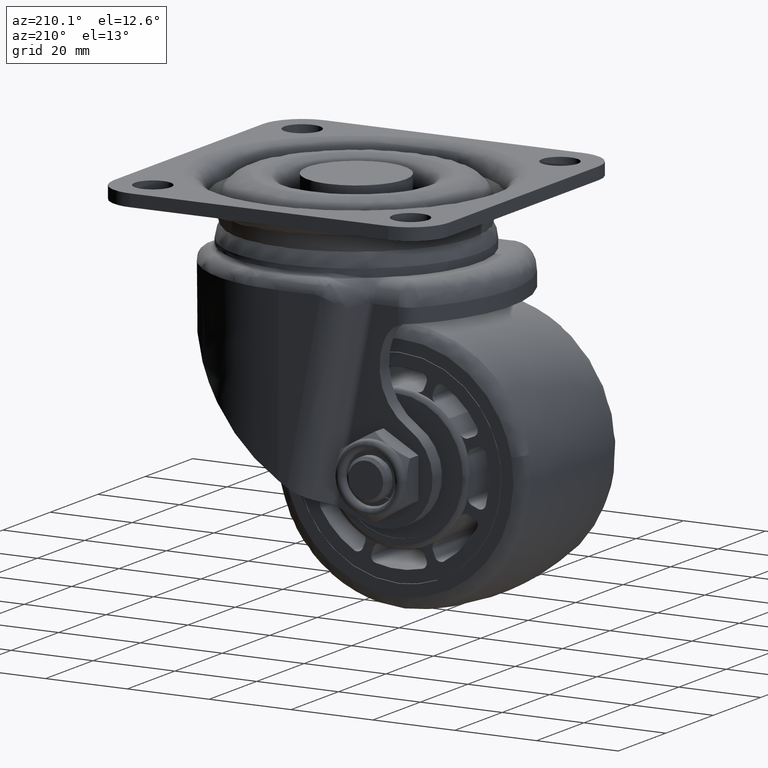
[diagram: clean part render]
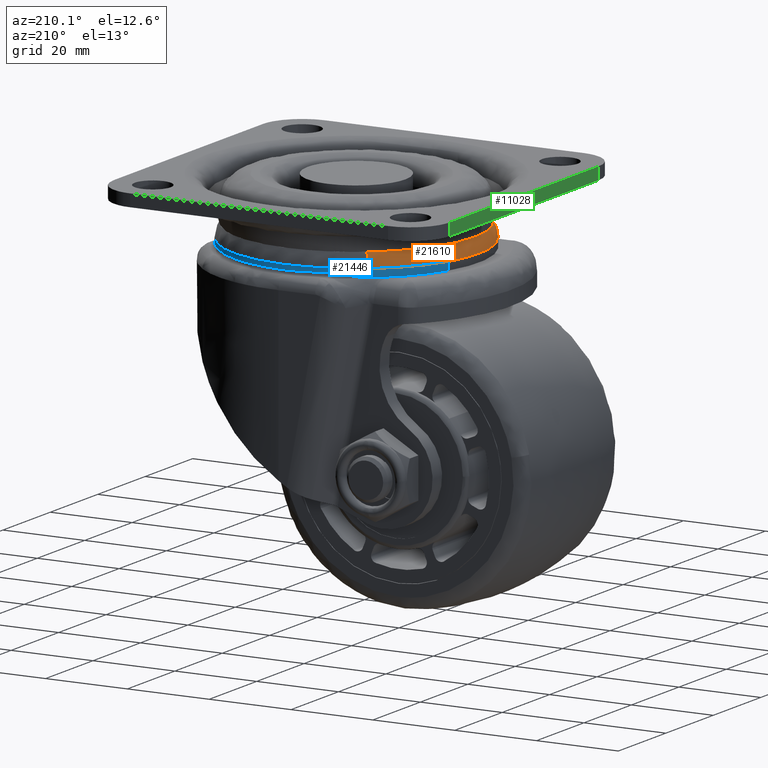
[diagram: same view with three faces highlighted in distinct colors, each labeled with its STEP entity id]
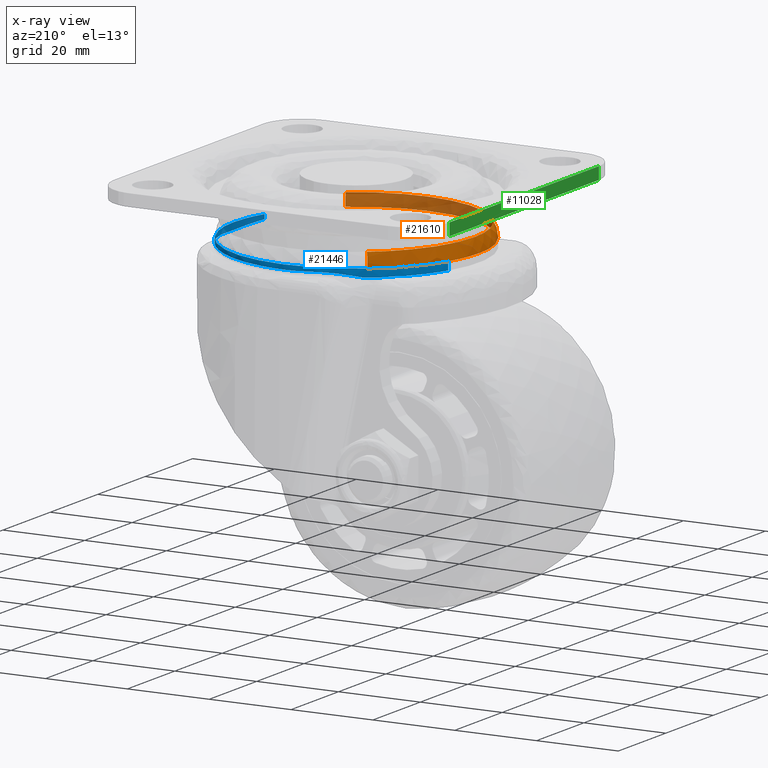
[diagram: x-ray of the same camera — body ghosted, the three highlighted faces saturated]
A machine part, auxiliary view with three faces highlighted in distinct colors.
The next image is the same camera in x-ray (body ghosted, the three faces saturated) — at least one of them is partly hidden behind the body in this view.
Their STEP definitions:

[orange] entity #21610 — the highlighted face is a freeform B-spline surface patch.
#21296=CARTESIAN_POINT('',(39.018068473802749,-24.705977928852629,43.500000000005940));
#21297=VERTEX_POINT('',#21296);
#21308=CARTESIAN_POINT('',(-7.999999999999752,0.0,43.500000000000000));
#21309=VERTEX_POINT('',#21308);
#21310=CARTESIAN_POINT('',(39.018068473802749,-24.705977928852629,43.500000000005940));
#21311=CARTESIAN_POINT('',(37.060166007435662,-26.055349949037751,43.500000000005883));
#21312=CARTESIAN_POINT('',(34.183717651239988,-27.567617846686389,43.500000000005542));
#21313=CARTESIAN_POINT('',(29.669842948243058,-29.078150485066072,43.500000000005294));
#21314=CARTESIAN_POINT('',(26.083544859609649,-29.820328641135440,43.500000000005073));
#21315=CARTESIAN_POINT('',(22.177213982068299,-30.070346438050208,43.500000000004178));
#21316=CARTESIAN_POINT('',(18.440616992526120,-29.864832717171801,43.500000000004398));
#21317=CARTESIAN_POINT('',(15.006008731457410,-29.246598889282701,43.500000000003823));
#21318=CARTESIAN_POINT('',(11.591021093142750,-28.201499999169322,43.500000000003780));
#21319=CARTESIAN_POINT('',(8.622880351521314,-26.920689776703679,43.500000000000341));
#21320=CARTESIAN_POINT('',(5.667458884587478,-25.237263445763951,43.500000000005663));
#21321=CARTESIAN_POINT('',(3.051873225011089,-23.337512109037000,43.500000000000767));
#21322=CARTESIAN_POINT('',(0.348208756585983,-20.875969616943241,43.500000000002487));
#21323=CARTESIAN_POINT('',(-1.813948202860139,-18.355809662302871,43.500000000001428));
#21324=CARTESIAN_POINT('',(-3.908510445784699,-15.257445650482611,43.500000000001201));
#21325=CARTESIAN_POINT('',(-5.519921565744447,-12.160766933460490,43.500000000000902));
#21326=CARTESIAN_POINT('',(-6.709870530980135,-8.882101288324712,43.500000000000583));
#21327=CARTESIAN_POINT('',(-7.704615016800920,-4.925318520627249,43.500000000000327));
#21328=CARTESIAN_POINT('',(-8.000293390587004,-2.038136299376756,43.500000000000057));
#21329=CARTESIAN_POINT('',(-7.999999999999752,0.0,43.500000000000000));
#21330=B_SPLINE_CURVE_WITH_KNOTS('',3,(#21310,#21311,#21312,#21313,#21314,#21315,#21316,#21317,#21318,#21319,#21320,#21321,#21322,#21323,#21324,#21325,#21326,#21327,#21328,#21329),.UNSPECIFIED.,.F.,.U.,(4,1,1,1,1,1,1,1,1,1,1,1,1,1,1,1,1,4),(0.000000026945798,7.133361773843390,9.681024836465248,14.266795696799520,18.088275537715781,21.400219444680399,25.476458205239339,28.533617282744530,32.100312584604239,35.157469662344212,38.724127281017630,41.781327952109358,46.112329696185299,48.659980075669168,52.990984626771372,56.557705841077457,59.105320342017471,65.219659457132323),.UNSPECIFIED.);
#21331=EDGE_CURVE('',#21297,#21309,#21330,.T.);
#21333=CARTESIAN_POINT('',(-6.272606114244018,10.032932946492050,43.500000000002061));
#21334=VERTEX_POINT('',#21333);
#21335=CARTESIAN_POINT('',(-7.999999999999752,0.0,43.500000000000000));
#21336=CARTESIAN_POINT('',(-8.000198034597256,1.811581360808495,43.500000000000263));
#21337=CARTESIAN_POINT('',(-7.690098812899021,5.221519424117773,43.500000000001009));
#21338=CARTESIAN_POINT('',(-6.807276962479744,8.526553397810085,43.500000000001862));
#21339=CARTESIAN_POINT('',(-6.272606114244018,10.032932946492050,43.500000000002061));
#21340=B_SPLINE_CURVE_WITH_KNOTS('',3,(#21335,#21336,#21337,#21338,#21339),.UNSPECIFIED.,.F.,.U.,(4,1,4),(3.710610E-009,5.434711196533819,10.230057249784940),.UNSPECIFIED.);
#21341=EDGE_CURVE('',#21309,#21334,#21340,.T.);
#21411=CARTESIAN_POINT('',(4.981931526197247,24.705977928852612,43.500000000005940));
#21412=VERTEX_POINT('',#21411);
#21413=CARTESIAN_POINT('',(-6.272606114244018,10.032932946492050,43.500000000002061));
#21414=CARTESIAN_POINT('',(-5.912437670974369,11.047906145484530,43.500000000002252));
#21415=CARTESIAN_POINT('',(-4.950668900627891,13.355793971494830,43.500000000002892));
#21416=CARTESIAN_POINT('',(-2.757354070784402,17.189731412612399,43.500000000003674));
#21417=CARTESIAN_POINT('',(0.545200406907393,21.222858280632309,43.500000000004981));
#21418=CARTESIAN_POINT('',(3.449850202155548,23.650861305721541,43.500000000005642));
#21419=CARTESIAN_POINT('',(4.981931526197247,24.705977928852612,43.500000000005940));
#21420=B_SPLINE_CURVE_WITH_KNOTS('',3,(#21413,#21414,#21415,#21416,#21417,#21418,#21419),.UNSPECIFIED.,.F.,.U.,(4,1,1,1,4),(0.000000011730855,3.230954936508104,7.489949493410524,13.217544546917180,18.798289740704710),.UNSPECIFIED.);
#21421=EDGE_CURVE('',#21334,#21412,#21420,.T.);
#21477=CARTESIAN_POINT('',(5.581147861975414,23.836065718212410,46.900001048870202));
#21478=VERTEX_POINT('',#21477);
#21479=CARTESIAN_POINT('',(5.581147861975414,23.836065718212410,46.900001048870202));
#21480=CARTESIAN_POINT('',(5.399481258656456,24.099800177795561,46.434743072087002));
#21481=CARTESIAN_POINT('',(5.092437561215981,24.545550811835810,45.344785638760463));
#21482=CARTESIAN_POINT('',(4.981730513359277,24.706269749199610,44.140151421463898));
#21483=CARTESIAN_POINT('',(4.981931526197247,24.705977928852612,43.500000000005940));
#21484=B_SPLINE_CURVE_WITH_KNOTS('',3,(#21479,#21480,#21481,#21482,#21483),.UNSPECIFIED.,.F.,.U.,(4,1,4),(0.000000017677369,1.694433944489253,3.614782450137159),.UNSPECIFIED.);
#21485=EDGE_CURVE('',#21478,#21412,#21484,.T.);
#21510=CARTESIAN_POINT('',(38.418852138024583,-23.836065718212421,46.900001048870202));
#21511=VERTEX_POINT('',#21510);
#21524=CARTESIAN_POINT('',(38.418852138024583,-23.836065718212421,46.900001048870202));
#21525=CARTESIAN_POINT('',(38.600511112692622,-24.099789102902960,46.434733808563088));
#21526=CARTESIAN_POINT('',(38.907574841822559,-24.545568817944812,45.344799737064442));
#21527=CARTESIAN_POINT('',(39.018266049164893,-24.706264758844689,44.140147089910322));
#21528=CARTESIAN_POINT('',(39.018068473802749,-24.705977928852629,43.500000000005940));
#21529=B_SPLINE_CURVE_WITH_KNOTS('',3,(#21524,#21525,#21526,#21527,#21528),.UNSPECIFIED.,.F.,.U.,(4,1,4),(0.000000017677030,1.694433944489078,3.614782450137176),.UNSPECIFIED.);
#21530=EDGE_CURVE('',#21511,#21297,#21529,.T.);
#21537=CARTESIAN_POINT('',(39.024673103487665,-23.294189499718659,47.044547984539449));
#21538=CARTESIAN_POINT('',(38.694598289948303,-23.521552925463915,47.044547984539449));
#21539=CARTESIAN_POINT('',(14.609076329991852,-40.112236488858883,47.044547984539449));
#21540=CARTESIAN_POINT('',(-1.751580079433515,-16.360656409425371,47.044547984539449));
#21541=CARTESIAN_POINT('',(-18.112236488858876,7.390923670008149,47.044547984539449));
#21542=CARTESIAN_POINT('',(5.973285471090280,23.981607233398087,47.044547984539449));
#21543=CARTESIAN_POINT('',(6.303360284622538,24.208970659138451,47.044547984539456));
#21544=CARTESIAN_POINT('',(39.743211357788567,-24.277337085386748,45.382033745714558));
#21545=CARTESIAN_POINT('',(39.399205505522772,-24.514296543786124,45.382033745714544));
#21546=CARTESIAN_POINT('',(14.297137219076944,-41.805201528927995,45.382033745714551));
#21547=CARTESIAN_POINT('',(-2.754032154925528,-17.051169374002466,45.382033745714544));
#21548=CARTESIAN_POINT('',(-19.805201528927995,7.702862780923055,45.382033745714551));
#21549=CARTESIAN_POINT('',(5.296866757510247,24.993767766059690,45.382033745714544));
#21550=CARTESIAN_POINT('',(5.640872609768620,25.230727224453965,45.382033745714558));
#21551=CARTESIAN_POINT('',(39.707215691321657,-24.228085633053308,43.322433438632196));
#21552=CARTESIAN_POINT('',(39.363907723991751,-24.464564371618000,43.322433438632196));
#21553=CARTESIAN_POINT('',(14.312764022698417,-41.720391284577452,43.322433438632196));
#21554=CARTESIAN_POINT('',(-2.703813630939526,-17.016577653637938,43.322433438632196));
#21555=CARTESIAN_POINT('',(-19.720391284577467,7.687235977301580,43.322433438632196));
#21556=CARTESIAN_POINT('',(5.330752416708297,24.943062890255828,43.322433438632203));
#21557=CARTESIAN_POINT('',(5.674060384030800,25.179541628815429,43.322433438632196));
#21565=(BOUNDED_SURFACE()B_SPLINE_SURFACE(2,2,((#21537,#21544,#21551),(#21538,#21545,#21552),(#21539,#21546,#21553),(#21540,#21547,#21554),(#21541,#21548,#21555),(#21542,#21549,#21556),(#21543,#21550,#21557)),.UNSPECIFIED.,.F.,.F.,.U.)B_SPLINE_SURFACE_WITH_KNOTS((3,1,2,1,3),(3,3),(0.0,0.994025463275139,50.695298625940588,100.396571788606000,101.390597251859400),(0.0,4.006316261530238),.UNSPECIFIED.)GEOMETRIC_REPRESENTATION_ITEM()RATIONAL_B_SPLINE_SURFACE(((0.950938823215274,0.898498284589376,0.949070791744421),(0.945432858942569,0.893295952606222,0.943575643429891),(0.664628681040675,0.627977021471084,0.663323079394906),(0.939926894669864,0.888093620623068,0.938080495115361),(0.664628681040675,0.627977021471084,0.663323079394906),(0.945432858942448,0.893295952606108,0.943575643429770),(0.950938823215032,0.898498284589147,0.949070791744180)))REPRESENTATION_ITEM('')SURFACE());
#21566=ORIENTED_EDGE('',*,*,#21421,.F.);
#21567=ORIENTED_EDGE('',*,*,#21341,.F.);
#21568=ORIENTED_EDGE('',*,*,#21331,.F.);
#21569=ORIENTED_EDGE('',*,*,#21530,.F.);
#21570=CARTESIAN_POINT('',(-6.943682116196939,0.0,46.900001049116320));
#21571=VERTEX_POINT('',#21570);
#21572=CARTESIAN_POINT('',(38.418852138024583,-23.836065718212421,46.900001048870202));
#21573=CARTESIAN_POINT('',(36.597344891711963,-25.091390954273820,46.900001048875062));
#21574=CARTESIAN_POINT('',(33.538436771211330,-26.716275400369700,46.900001048884732));
#21575=CARTESIAN_POINT('',(28.925846865128101,-28.194808021680451,46.900001048900378));
#21576=CARTESIAN_POINT('',(25.123559563012140,-28.864509262878322,46.900001048916309));
#21577=CARTESIAN_POINT('',(21.760035423207128,-28.993863686619310,46.900001048929127));
#21578=CARTESIAN_POINT('',(18.568809669171898,-28.791124609911900,46.900001048943743));
#21579=CARTESIAN_POINT('',(15.491655613955750,-28.277633108680568,46.900001048957563));
#21580=CARTESIAN_POINT('',(11.636094415773931,-27.133536767749369,46.900001048976847));
#21581=CARTESIAN_POINT('',(8.202553327172204,-25.546961216061451,46.900001048994817));
#21582=CARTESIAN_POINT('',(5.092048308134404,-23.558666199493821,46.900001049012531));
#21583=CARTESIAN_POINT('',(2.337056895303154,-21.354189730754602,46.900001049029171));
#21584=CARTESIAN_POINT('',(-0.164947904098922,-18.744228062024892,46.900001049045621));
#21585=CARTESIAN_POINT('',(-2.590944645668038,-15.435492681173850,46.900001049063320));
#21586=CARTESIAN_POINT('',(-4.393052580878234,-12.111464271570210,46.900001049078448));
#21587=CARTESIAN_POINT('',(-5.768541500573505,-8.419702965823454,46.900001049092502));
#21588=CARTESIAN_POINT('',(-6.699481119774948,-4.506136033818184,46.900001049105263));
#21589=CARTESIAN_POINT('',(-6.943824514546277,-1.638612417182394,46.900001049112660));
#21590=CARTESIAN_POINT('',(-6.943682116196939,0.0,46.900001049116320));
#21591=B_SPLINE_CURVE_WITH_KNOTS('',3,(#21572,#21573,#21574,#21575,#21576,#21577,#21578,#21579,#21580,#21581,#21582,#21583,#21584,#21585,#21586,#21587,#21588,#21589,#21590),.UNSPECIFIED.,.F.,.U.,(4,1,1,1,1,1,1,1,1,1,1,1,1,1,1,1,4),(0.000000013853352,6.636395325254810,10.323322395779330,14.501840512139150,18.188751502740530,20.400918543503160,24.087839317428219,27.528948763471430,32.444781524496300,35.394264768809492,38.589638793735482,43.013916221201399,46.209248180687609,50.879353985222743,54.320485629744780,58.007413113922397,62.923236368599781),.UNSPECIFIED.);
#21592=EDGE_CURVE('',#21511,#21571,#21591,.T.);
#21593=ORIENTED_EDGE('',*,*,#21592,.T.);
#21594=CARTESIAN_POINT('',(-6.943682116196939,0.0,46.900001049116320));
#21595=CARTESIAN_POINT('',(-6.943790563155172,1.604526461848555,46.900001049103430));
#21596=CARTESIAN_POINT('',(-6.724773193494706,4.230065090649798,46.900001049080977));
#21597=CARTESIAN_POINT('',(-5.787717952320712,8.436031798254584,46.900001049043240));
#21598=CARTESIAN_POINT('',(-4.295691926794570,12.411370284579711,46.900001049004743));
#21599=CARTESIAN_POINT('',(-2.130592956749504,16.145733980281982,46.900001048965308));
#21600=CARTESIAN_POINT('',(0.247646180200236,19.200859266593380,46.900001048930243));
#21601=CARTESIAN_POINT('',(2.720758977159412,21.688799594975901,46.900001048899810));
#21602=CARTESIAN_POINT('',(4.620134071930408,23.174131470001171,46.900001048879652));
#21603=CARTESIAN_POINT('',(5.581147861975414,23.836065718212410,46.900001048870202));
#21604=B_SPLINE_CURVE_WITH_KNOTS('',3,(#21594,#21595,#21596,#21597,#21598,#21599,#21600,#21601,#21602,#21603),.UNSPECIFIED.,.F.,.U.,(4,1,1,1,1,1,1,4),(0.000000025417549,4.813570512749610,7.876768675355486,12.909161302176059,17.503908800943499,20.785908662083621,24.505508942448088,28.006278487122518),.UNSPECIFIED.);
#21605=EDGE_CURVE('',#21571,#21478,#21604,.T.);
#21606=ORIENTED_EDGE('',*,*,#21605,.T.);
#21607=ORIENTED_EDGE('',*,*,#21485,.T.);
#21608=EDGE_LOOP('',(#21566,#21567,#21568,#21569,#21593,#21606,#21607));
#21609=FACE_OUTER_BOUND('',#21608,.T.);
#21610=ADVANCED_FACE('',(#21609),#21565,.T.);

[blue] entity #21446 — the highlighted face is a freeform B-spline surface patch.
#18246=CARTESIAN_POINT('',(-6.272606080730937,10.032933040931450,41.500000000000000));
#18247=VERTEX_POINT('',#18246);
#18261=CARTESIAN_POINT('',(-1.301869722721168,18.895048754245700,41.500000000000000));
#18262=VERTEX_POINT('',#18261);
#18263=CARTESIAN_POINT('',(-1.301869722721168,18.895048754245700,41.500000000000000));
#18264=CARTESIAN_POINT('',(-2.038729377632933,17.986348804277370,41.500000000000007));
#18265=CARTESIAN_POINT('',(-4.027555885516104,15.217329779938661,41.500000000000000));
#18266=CARTESIAN_POINT('',(-5.526111098120584,12.138021015104590,41.499999999999972));
#18267=CARTESIAN_POINT('',(-6.272606080730937,10.032933040931450,41.500000000000000));
#18268=B_SPLINE_CURVE_WITH_KNOTS('',3,(#18263,#18264,#18265,#18266,#18267),.UNSPECIFIED.,.F.,.U.,(4,1,4),(3.674463E-009,3.509753348169537,10.210188095832530),.UNSPECIFIED.);
#18269=EDGE_CURVE('',#18262,#18247,#18268,.T.);
#18648=CARTESIAN_POINT('',(2.436380561302300,22.743456079888151,41.500000000000000));
#18649=VERTEX_POINT('',#18648);
#18650=CARTESIAN_POINT('',(2.436380561302300,22.743456079888151,41.500000000000000));
#18651=CARTESIAN_POINT('',(2.351217769248964,22.670200175060131,41.500000000000092));
#18652=CARTESIAN_POINT('',(2.266571503647330,22.596556679784658,41.502944567381569));
#18653=CARTESIAN_POINT('',(2.098202638180529,22.448408312672409,41.511447884067913));
#18654=CARTESIAN_POINT('',(2.014480671418349,22.373903868150752,41.517024460381300));
#18655=CARTESIAN_POINT('',(1.764601814390142,22.149015526818900,41.534643324480101));
#18656=CARTESIAN_POINT('',(1.599702813536462,21.997230569606639,41.547332258795933));
#18657=CARTESIAN_POINT('',(1.273174572068573,21.689836000037531,41.566940807220838));
#18658=CARTESIAN_POINT('',(1.111783099349321,21.534449366278881,41.574013040098158));
#18659=CARTESIAN_POINT('',(0.792742180986630,21.220328239576180,41.581217244910697));
#18660=CARTESIAN_POINT('',(0.635091894621581,21.061593097621230,41.581425178494072));
#18661=CARTESIAN_POINT('',(0.323508709422381,20.740774515204190,41.576140354397410));
#18662=CARTESIAN_POINT('',(0.169575541348836,20.578690877540740,41.570671358133680));
#18663=CARTESIAN_POINT('',(-0.134600828573400,20.251157903635320,41.556310171361943));
#18664=CARTESIAN_POINT('',(-0.284844038681050,20.085708621928930,41.547415492687712));
#18665=CARTESIAN_POINT('',(-0.581667487785394,19.751411548151800,41.529277762719573));
#18666=CARTESIAN_POINT('',(-0.728247540091797,19.582564067436611,41.520008963158212));
#18667=CARTESIAN_POINT('',(-1.017773976561175,19.241417122002520,41.505408876276867));
#18668=CARTESIAN_POINT('',(-1.160719774083918,19.069118573132780,41.500000000000981));
#18669=CARTESIAN_POINT('',(-1.301869722721170,18.895048754245700,41.500000000000000));
#18670=B_SPLINE_CURVE_WITH_KNOTS('',3,(#18650,#18651,#18652,#18653,#18654,#18655,#18656,#18657,#18658,#18659,#18660,#18661,#18662,#18663,#18664,#18665,#18666,#18667,#18668,#18669),.UNSPECIFIED.,.F.,.U.,(4,2,2,2,2,2,2,2,2,4),(0.0,0.062500000000000,0.125000000000000,0.250000000000000,0.375000000000000,0.500000000000000,0.625000000000000,0.750000000000000,0.875000000000000,1.0),.UNSPECIFIED.);
#18671=EDGE_CURVE('',#18649,#18262,#18670,.T.);
#19142=CARTESIAN_POINT('',(22.0,30.0,42.340767679162198));
#19143=VERTEX_POINT('',#19142);
#19155=CARTESIAN_POINT('',(19.336739905221400,29.881550255426149,42.371923211266562));
#19156=VERTEX_POINT('',#19155);
#19167=CARTESIAN_POINT('',(22.0,30.0,42.340767679162198));
#19168=CARTESIAN_POINT('',(21.110994686921838,30.000021318660028,42.340566878511090));
#19169=CARTESIAN_POINT('',(20.221985935990130,29.960484187111970,42.350966219056119));
#19170=CARTESIAN_POINT('',(19.336739905221400,29.881550255426149,42.371923211266562));
#19171=B_SPLINE_CURVE_WITH_KNOTS('',3,(#19167,#19168,#19169,#19170),.UNSPECIFIED.,.F.,.U.,(4,4),(2.824168E-010,2.667020268511836),.UNSPECIFIED.);
#19172=EDGE_CURVE('',#19143,#19156,#19171,.T.);
#19235=CARTESIAN_POINT('',(13.986202772232360,28.909843548387101,42.500000000000000));
#19236=VERTEX_POINT('',#19235);
#19247=CARTESIAN_POINT('',(19.336739905221400,29.881550255426149,42.371923211266562));
#19248=CARTESIAN_POINT('',(18.883495899595729,29.841153868255400,42.382748310067413));
#19249=CARTESIAN_POINT('',(18.432156864019010,29.790539097066080,42.395629524584898));
#19250=CARTESIAN_POINT('',(17.533190207465971,29.669063595167788,42.422835829449852));
#19251=CARTESIAN_POINT('',(17.085562540548739,29.598202865749641,42.437159010362087));
#19252=CARTESIAN_POINT('',(16.193925866876430,29.436283929626740,42.463742167933781));
#19253=CARTESIAN_POINT('',(15.749916891055410,29.345225885520680,42.476004670514847));
#19254=CARTESIAN_POINT('',(14.865431180523879,29.142816420193618,42.494128645211802));
#19255=CARTESIAN_POINT('',(14.424954612205820,29.031465385356700,42.500000000000000));
#19256=CARTESIAN_POINT('',(13.986202772232360,28.909843548387151,42.500000000000000));
#19257=B_SPLINE_CURVE_WITH_KNOTS('',3,(#19247,#19248,#19249,#19250,#19251,#19252,#19253,#19254,#19255,#19256),.UNSPECIFIED.,.F.,.U.,(4,2,2,2,4),(0.0,0.250000000000000,0.500000000000000,0.750000000000000,1.0),.UNSPECIFIED.);
#19258=EDGE_CURVE('',#19156,#19236,#19257,.T.);
#19364=CARTESIAN_POINT('',(32.910978810438742,27.945492326995449,42.372920668270503));
#19365=VERTEX_POINT('',#19364);
#19378=CARTESIAN_POINT('',(32.910978810438742,27.945492326995449,42.372920668270503));
#19379=CARTESIAN_POINT('',(31.448198741184989,28.516719731944178,42.363927910142984));
#19380=CARTESIAN_POINT('',(27.874218164713291,29.597568077982821,42.346939489616346));
#19381=CARTESIAN_POINT('',(24.152040287551081,30.000412096917721,42.340688458726738));
#19382=CARTESIAN_POINT('',(22.0,30.0,42.340767679162198));
#19383=B_SPLINE_CURVE_WITH_KNOTS('',3,(#19378,#19379,#19380,#19381,#19382),.UNSPECIFIED.,.F.,.U.,(4,1,4),(4.475593E-009,4.711153261628093,11.167160280187490),.UNSPECIFIED.);
#19384=EDGE_CURVE('',#19365,#19143,#19383,.T.);
#19406=CARTESIAN_POINT('',(13.088538423513061,28.645869729697399,42.500000000000000));
#19407=VERTEX_POINT('',#19406);
#19418=CARTESIAN_POINT('',(13.986202772232360,28.909843548387101,42.500000000000000));
#19419=CARTESIAN_POINT('',(13.685637017191270,28.826526998501318,42.500000000000007));
#19420=CARTESIAN_POINT('',(13.386360574073571,28.738519542210760,42.499999999999993));
#19421=CARTESIAN_POINT('',(13.088538423513061,28.645869729697399,42.500000000000000));
#19422=B_SPLINE_CURVE_WITH_KNOTS('',3,(#19418,#19419,#19420,#19421),.UNSPECIFIED.,.F.,.U.,(4,4),(3.602763E-011,0.935713030176827),.UNSPECIFIED.);
#19423=EDGE_CURVE('',#19236,#19407,#19422,.T.);
#19508=CARTESIAN_POINT('',(43.778806869080199,20.632100507687401,42.462445872803997));
#19509=VERTEX_POINT('',#19508);
#19522=CARTESIAN_POINT('',(43.778806869080199,20.632100507687401,42.462445872803997));
#19523=CARTESIAN_POINT('',(43.017986738197742,21.435206070614630,42.455526496436519));
#19524=CARTESIAN_POINT('',(42.218983163070853,22.189921930153542,42.448074885198672));
#19525=CARTESIAN_POINT('',(40.546833393359577,23.605399519894011,42.432712940092863));
#19526=CARTESIAN_POINT('',(39.673682041996912,24.266154699924058,42.424801201283472));
#19527=CARTESIAN_POINT('',(38.307963152553107,25.186338817413159,42.413003700609472));
#19528=CARTESIAN_POINT('',(37.843370887839590,25.481215901838372,42.409082620480980));
#19529=CARTESIAN_POINT('',(37.132212333411459,25.905450027513229,42.403268867070473));
#19530=CARTESIAN_POINT('',(36.892584743587982,26.043948720131500,42.401340767087483));
#19531=CARTESIAN_POINT('',(36.410358210226370,26.313835173435880,42.397530026890010));
#19532=CARTESIAN_POINT('',(36.167588396373439,26.445331921802939,42.395645939682282));
#19533=CARTESIAN_POINT('',(34.945489632830352,27.085652307825850,42.386351078343672));
#19534=CARTESIAN_POINT('',(33.941487043451708,27.543142876042118,42.379318546162679));
#19535=CARTESIAN_POINT('',(32.910978810438742,27.945492326995449,42.372920668270503));
#19536=B_SPLINE_CURVE_WITH_KNOTS('',3,(#19522,#19523,#19524,#19525,#19526,#19527,#19528,#19529,#19530,#19531,#19532,#19533,#19534,#19535),.UNSPECIFIED.,.F.,.U.,(4,2,2,2,2,2,4),(0.0,0.250000000000000,0.500000000000001,0.625000000000001,0.687500000000001,0.750000000000001,1.0),.UNSPECIFIED.);
#19537=EDGE_CURVE('',#19509,#19365,#19536,.T.);
#19634=CARTESIAN_POINT('',(5.492810128620731,25.050203243691001,41.500000000000000));
#19635=VERTEX_POINT('',#19634);
#19653=CARTESIAN_POINT('',(13.088538423513061,28.645869729697399,42.500000000000000));
#19654=CARTESIAN_POINT('',(12.403611991244111,28.432795536402541,42.500000000000021));
#19655=CARTESIAN_POINT('',(11.733779186457340,28.197550256771560,42.465072738758202));
#19656=CARTESIAN_POINT('',(10.420420874964289,27.684119591610848,42.349793427568031));
#19657=CARTESIAN_POINT('',(9.776924387014804,27.405929896794721,42.269236453784281));
#19658=CARTESIAN_POINT('',(8.513803776855252,26.806922284731161,42.080071373058281));
#19659=CARTESIAN_POINT('',(7.894193012581747,26.486105839432309,41.971356510223032));
#19660=CARTESIAN_POINT('',(6.677157474786649,25.801125755505730,41.741270077163144));
#19661=CARTESIAN_POINT('',(6.079738775098440,25.436968273663311,41.619830234003807));
#19662=CARTESIAN_POINT('',(5.492810128620739,25.050203243691001,41.500000000000000));
#19663=B_SPLINE_CURVE_WITH_KNOTS('',3,(#19653,#19654,#19655,#19656,#19657,#19658,#19659,#19660,#19661,#19662),.UNSPECIFIED.,.F.,.U.,(4,2,2,2,4),(0.0,0.250000000000000,0.500000000000000,0.750000000000000,1.0),.UNSPECIFIED.);
#19664=EDGE_CURVE('',#19407,#19635,#19663,.T.);
#19739=CARTESIAN_POINT('',(49.464201329185300,12.071356400586900,42.496396256342997));
#19740=VERTEX_POINT('',#19739);
#19753=CARTESIAN_POINT('',(49.464201329185300,12.071356400586900,42.496396256342997));
#19754=CARTESIAN_POINT('',(48.512390656553308,14.238362120652200,42.494716085772367));
#19755=CARTESIAN_POINT('',(46.751781313726632,17.224612409285211,42.486031502431530));
#19756=CARTESIAN_POINT('',(44.518650317997214,19.851123715856851,42.468680832294183));
#19757=CARTESIAN_POINT('',(43.778806869080199,20.632100507687401,42.462445872803997));
#19758=B_SPLINE_CURVE_WITH_KNOTS('',3,(#19753,#19754,#19755,#19756,#19757),.UNSPECIFIED.,.F.,.U.,(4,1,4),(3.440938E-009,7.100274202451523,10.327675922387771),.UNSPECIFIED.);
#19759=EDGE_CURVE('',#19740,#19509,#19758,.T.);
#19812=CARTESIAN_POINT('',(49.575044423557387,11.815960605843600,42.494006461960247));
#19813=VERTEX_POINT('',#19812);
#19826=CARTESIAN_POINT('',(49.575044423557387,11.815960605843600,42.494006461960247));
#19827=CARTESIAN_POINT('',(49.464201329185300,12.071356400586900,42.496396256342997));
#19828=QUASI_UNIFORM_CURVE('',1,(#19826,#19827),.UNSPECIFIED.,.F.,.U.);
#19829=EDGE_CURVE('',#19813,#19740,#19828,.T.);
#19976=CARTESIAN_POINT('',(50.272605429687822,-10.032932747542990,42.417940012171279));
#19977=VERTEX_POINT('',#19976);
#19978=CARTESIAN_POINT('',(50.272605429687822,-10.032932747542990,42.417940012171279));
#19979=CARTESIAN_POINT('',(50.314910471991027,-9.913718006170440,42.410634901472733));
#19980=CARTESIAN_POINT('',(50.356437097361102,-9.794307224348279,42.402966603502144));
#19981=CARTESIAN_POINT('',(50.479144113796188,-9.434142100408115,42.378927271721487));
#19982=CARTESIAN_POINT('',(50.557902069062870,-9.192954362961000,42.361608260357592));
#19983=CARTESIAN_POINT('',(50.935730074247523,-7.984346863151203,42.270619459905546));
#19984=CARTESIAN_POINT('',(51.187085248158162,-7.008925729251449,42.184184050522141));
#19985=CARTESIAN_POINT('',(51.590873955986957,-5.038964137114573,42.024674271206138));
#19986=CARTESIAN_POINT('',(51.743294640009729,-4.044417886903015,41.951653695351119));
#19987=CARTESIAN_POINT('',(51.896833449512677,-2.536649828215717,41.874846304691161));
#19988=CARTESIAN_POINT('',(51.935467138835278,-2.031402222693317,41.854611167487228));
#19989=CARTESIAN_POINT('',(51.974213033258167,-1.269357320926755,41.834116898286482));
#19990=CARTESIAN_POINT('',(51.983925638442329,-1.014646954610960,41.828920086416879));
#19991=CARTESIAN_POINT('',(51.996857873860719,-0.503807256446058,41.821984355934582));
#19992=CARTESIAN_POINT('',(52.000050443401449,-0.248560052960754,41.820260252969639));
#19993=CARTESIAN_POINT('',(51.999898424011057,0.515034509512182,41.820342142571732));
#19994=CARTESIAN_POINT('',(51.986849733574502,1.021934422911264,41.827433911584173));
#19995=CARTESIAN_POINT('',(51.935403006615637,2.031539232925184,41.854643908435023));
#19996=CARTESIAN_POINT('',(51.897004953675371,2.534244510081695,41.874754967459950));
#19997=CARTESIAN_POINT('',(51.795178158264392,3.535626809072157,41.925704409794783));
#19998=CARTESIAN_POINT('',(51.731749557574233,4.034304263847496,41.956535051982137));
#19999=CARTESIAN_POINT('',(51.579952098536680,5.027820059492760,42.025615411215043));
#20000=CARTESIAN_POINT('',(51.491583572531823,5.522658748873827,42.063859460897362));
#20001=CARTESIAN_POINT('',(51.289761552551113,6.508696306407205,42.143660393331942));
#20002=CARTESIAN_POINT('',(51.176308679208447,6.999895340594758,42.185215771221017));
#20003=CARTESIAN_POINT('',(50.987020363845133,7.734115063024824,42.246441647667567));
#20004=CARTESIAN_POINT('',(50.920737422307432,7.978425166440514,42.266660551344309));
#20005=CARTESIAN_POINT('',(50.781723236994907,8.466210949585323,42.306054356159542));
#20006=CARTESIAN_POINT('',(50.708931022853832,8.709879085117247,42.325243778902987));
#20007=CARTESIAN_POINT('',(50.481192976966078,9.438245979854973,42.380068111415930));
#20008=CARTESIAN_POINT('',(50.317156432939669,9.919547651304903,42.412927844250071));
#20009=CARTESIAN_POINT('',(49.964572119777301,10.873889768735200,42.465243241674720));
#20010=CARTESIAN_POINT('',(49.776025162223391,11.346929551921010,42.484716767908218));
#20011=CARTESIAN_POINT('',(49.575044423557387,11.815960605843600,42.494006461960247));
#20012=B_SPLINE_CURVE_WITH_KNOTS('',3,(#19978,#19979,#19980,#19981,#19982,#19983,#19984,#19985,#19986,#19987,#19988,#19989,#19990,#19991,#19992,#19993,#19994,#19995,#19996,#19997,#19998,#19999,#20000,#20001,#20002,#20003,#20004,#20005,#20006,#20007,#20008,#20009,#20010,#20011),.UNSPECIFIED.,.F.,.U.,(4,2,2,2,2,2,2,2,2,2,2,2,2,2,2,2,4),(0.078233977486708,0.093750000000000,0.125000000000000,0.250000000000000,0.375000000000000,0.437500000000000,0.468750000000000,0.500000000000000,0.562500000000000,0.625000000000000,0.687500000000000,0.750000000000000,0.812500000000000,0.843750000000000,0.875000000000000,0.937500000000000,1.0),.UNSPECIFIED.);
#20013=EDGE_CURVE('',#19977,#19813,#20012,.T.);
#21034=CARTESIAN_POINT('',(5.492810128620731,25.050203243691001,41.500000000000000));
#21035=CARTESIAN_POINT('',(4.426269698689198,24.347414323151060,41.500000000000142));
#21036=CARTESIAN_POINT('',(3.404677602567444,23.576418396510370,41.499999999999929));
#21037=CARTESIAN_POINT('',(2.436380561302300,22.743456079888151,41.500000000000000));
#21038=B_SPLINE_CURVE_WITH_KNOTS('',3,(#21034,#21035,#21036,#21037),.UNSPECIFIED.,.F.,.U.,(4,4),(2.839449E-010,3.831823694121297),.UNSPECIFIED.);
#21039=EDGE_CURVE('',#19635,#18649,#21038,.T.);
#21294=CARTESIAN_POINT('',(50.272606114477433,-10.032932945834521,43.499999999935937));
#21295=VERTEX_POINT('',#21294);
#21333=CARTESIAN_POINT('',(-6.272606114244018,10.032932946492050,43.500000000002061));
#21334=VERTEX_POINT('',#21333);
#21343=CARTESIAN_POINT('',(-6.272606114244018,10.032932946492050,43.500000000002061));
#21344=CARTESIAN_POINT('',(-6.272606080730937,10.032933040931450,41.500000000000000));
#21345=QUASI_UNIFORM_CURVE('',1,(#21343,#21344),.UNSPECIFIED.,.F.,.U.);
#21346=EDGE_CURVE('',#21334,#18247,#21345,.T.);
#21361=CARTESIAN_POINT('',(50.272606114477433,-10.032932945834521,43.499999999935937));
#21362=CARTESIAN_POINT('',(50.272605429687822,-10.032932747542990,42.417940012171279));
#21363=QUASI_UNIFORM_CURVE('',1,(#21361,#21362),.UNSPECIFIED.,.F.,.U.);
#21364=EDGE_CURVE('',#21295,#19977,#21363,.T.);
#21369=CARTESIAN_POINT('',(-6.272606100385424,10.032932985545569,43.550000000006087));
#21370=CARTESIAN_POINT('',(3.760326885160143,38.305539085930988,43.550000000006087));
#21371=CARTESIAN_POINT('',(32.032932985545557,28.272606100385421,43.550000000006087));
#21372=CARTESIAN_POINT('',(60.305539085930988,18.239673114839857,43.550000000006087));
#21373=CARTESIAN_POINT('',(50.272606100385417,-10.032932985545569,43.550000000006087));
#21374=CARTESIAN_POINT('',(-6.272606100385424,10.032932985545569,41.448749999999848));
#21375=CARTESIAN_POINT('',(3.760326885160143,38.305539085930988,41.448749999999855));
#21376=CARTESIAN_POINT('',(32.032932985545557,28.272606100385421,41.448749999999848));
#21377=CARTESIAN_POINT('',(60.305539085930988,18.239673114839857,41.448749999999855));
#21378=CARTESIAN_POINT('',(50.272606100385417,-10.032932985545569,41.448749999999848));
#21386=(BOUNDED_SURFACE()B_SPLINE_SURFACE(2,1,((#21369,#21374),(#21370,#21375),(#21371,#21376),(#21372,#21377),(#21373,#21378)),.UNSPECIFIED.,.F.,.F.,.U.)B_SPLINE_SURFACE_WITH_KNOTS((3,2,3),(2,2),(0.0,49.705627484771391,99.411254969542782),(0.0,2.101250000006244),.UNSPECIFIED.)GEOMETRIC_REPRESENTATION_ITEM()RATIONAL_B_SPLINE_SURFACE(((1.0,1.0),(0.707106781186548,0.707106781186548),(1.0,1.0),(0.707106781186548,0.707106781186548),(1.0,1.0)))REPRESENTATION_ITEM('')SURFACE());
#21387=CARTESIAN_POINT('',(52.0,0.0,43.500000000000000));
#21388=VERTEX_POINT('',#21387);
#21389=CARTESIAN_POINT('',(52.0,0.0,43.500000000000000));
#21390=CARTESIAN_POINT('',(52.000424860780512,-2.184584219963673,43.499999999985832));
#21391=CARTESIAN_POINT('',(51.625777233002637,-5.594396431244111,43.499999999964729));
#21392=CARTESIAN_POINT('',(50.682454367770070,-8.878028213480370,43.499999999943071));
#21393=CARTESIAN_POINT('',(50.272606114477433,-10.032932945834521,43.499999999935937));
#21394=B_SPLINE_CURVE_WITH_KNOTS('',3,(#21389,#21390,#21391,#21392,#21393),.UNSPECIFIED.,.F.,.U.,(4,1,4),(3.711598E-009,6.553625450083395,10.230057249087260),.UNSPECIFIED.);
#21395=EDGE_CURVE('',#21388,#21295,#21394,.T.);
#21396=ORIENTED_EDGE('',*,*,#21395,.T.);
#21397=ORIENTED_EDGE('',*,*,#21364,.T.);
#21398=ORIENTED_EDGE('',*,*,#20013,.T.);
#21399=ORIENTED_EDGE('',*,*,#19829,.T.);
#21400=ORIENTED_EDGE('',*,*,#19759,.T.);
#21401=ORIENTED_EDGE('',*,*,#19537,.T.);
#21402=ORIENTED_EDGE('',*,*,#19384,.T.);
#21403=ORIENTED_EDGE('',*,*,#19172,.T.);
#21404=ORIENTED_EDGE('',*,*,#19258,.T.);
#21405=ORIENTED_EDGE('',*,*,#19423,.T.);
#21406=ORIENTED_EDGE('',*,*,#19664,.T.);
#21407=ORIENTED_EDGE('',*,*,#21039,.T.);
#21408=ORIENTED_EDGE('',*,*,#18671,.T.);
#21409=ORIENTED_EDGE('',*,*,#18269,.T.);
#21410=ORIENTED_EDGE('',*,*,#21346,.F.);
#21411=CARTESIAN_POINT('',(4.981931526197247,24.705977928852612,43.500000000005940));
#21412=VERTEX_POINT('',#21411);
#21413=CARTESIAN_POINT('',(-6.272606114244018,10.032932946492050,43.500000000002061));
#21414=CARTESIAN_POINT('',(-5.912437670974369,11.047906145484530,43.500000000002252));
#21415=CARTESIAN_POINT('',(-4.950668900627891,13.355793971494830,43.500000000002892));
#21416=CARTESIAN_POINT('',(-2.757354070784402,17.189731412612399,43.500000000003674));
#21417=CARTESIAN_POINT('',(0.545200406907393,21.222858280632309,43.500000000004981));
#21418=CARTESIAN_POINT('',(3.449850202155548,23.650861305721541,43.500000000005642));
#21419=CARTESIAN_POINT('',(4.981931526197247,24.705977928852612,43.500000000005940));
#21420=B_SPLINE_CURVE_WITH_KNOTS('',3,(#21413,#21414,#21415,#21416,#21417,#21418,#21419),.UNSPECIFIED.,.F.,.U.,(4,1,1,1,4),(0.000000011730855,3.230954936508104,7.489949493410524,13.217544546917180,18.798289740704710),.UNSPECIFIED.);
#21421=EDGE_CURVE('',#21334,#21412,#21420,.T.);
#21422=ORIENTED_EDGE('',*,*,#21421,.T.);
#21423=CARTESIAN_POINT('',(4.981931526197247,24.705977928852612,43.500000000005940));
#21424=CARTESIAN_POINT('',(5.960995073390577,25.380411627488300,43.500000000005940));
#21425=CARTESIAN_POINT('',(8.145057928003704,26.700728707143188,43.500000000005720));
#21426=CARTESIAN_POINT('',(11.570250945533630,28.215386038398240,43.500000000005549));
#21427=CARTESIAN_POINT('',(15.810544863683260,29.476177135536730,43.500000000005024));
#21428=CARTESIAN_POINT('',(19.951180452022118,30.043344412320248,43.500000000004917));
#21429=CARTESIAN_POINT('',(24.033340233917180,29.992133169507451,43.500000000004263));
#21430=CARTESIAN_POINT('',(27.240881105773450,29.595948621229571,43.500000000003944));
#21431=CARTESIAN_POINT('',(30.967430996762548,28.727336550453149,43.500000000004242));
#21432=CARTESIAN_POINT('',(34.709319243426123,27.297768877814772,43.500000000001442));
#21433=CARTESIAN_POINT('',(38.637548239961127,25.082207077000920,43.500000000004277));
#21434=CARTESIAN_POINT('',(42.356397993589482,22.233863121323200,43.500000000001862));
#21435=CARTESIAN_POINT('',(45.660687221704151,18.667726591688378,43.499999999998501));
#21436=CARTESIAN_POINT('',(48.514399358723722,14.328173431732351,43.500000000003162));
#21437=CARTESIAN_POINT('',(50.341611729049532,10.193480149308600,43.499999999999602));
#21438=CARTESIAN_POINT('',(51.669804012850143,5.264985590550863,43.500000000000981));
#21439=CARTESIAN_POINT('',(52.000300437969287,2.038135042639228,43.499999999999893));
#21440=CARTESIAN_POINT('',(52.0,0.0,43.500000000000000));
#21441=B_SPLINE_CURVE_WITH_KNOTS('',3,(#21423,#21424,#21425,#21426,#21427,#21428,#21429,#21430,#21431,#21432,#21433,#21434,#21435,#21436,#21437,#21438,#21439,#21440),.UNSPECIFIED.,.F.,.U.,(4,1,1,1,1,1,1,1,1,1,1,1,1,1,1,4),(0.000000026942203,3.566639292994346,7.642886883228563,11.209616167871680,16.814447238349860,20.126383088233450,23.438352011965630,26.495502456778841,31.590791064880982,35.412230828520620,39.997950604572232,45.602795267218383,49.933807953700203,55.538649663573253,59.105320342017137,65.219659457132437),.UNSPECIFIED.);
#21442=EDGE_CURVE('',#21412,#21388,#21441,.T.);
#21443=ORIENTED_EDGE('',*,*,#21442,.T.);
#21444=EDGE_LOOP('',(#21396,#21397,#21398,#21399,#21400,#21401,#21402,#21403,#21404,#21405,#21406,#21407,#21408,#21409,#21410,#21422,#21443));
#21445=FACE_OUTER_BOUND('',#21444,.T.);
#21446=ADVANCED_FACE('',(#21445),#21386,.T.);

[green] entity #11028 — the highlighted face is a freeform B-spline surface patch.
#10711=CARTESIAN_POINT('',(-19.000000000000249,31.500000000000000,57.500000000000000));
#10712=VERTEX_POINT('',#10711);
#10727=CARTESIAN_POINT('',(-19.000000000000249,-31.500000000000000,57.500000000000000));
#10728=VERTEX_POINT('',#10727);
#10729=CARTESIAN_POINT('',(-19.000000000000249,31.500000000000000,57.500000000000000));
#10730=CARTESIAN_POINT('',(-19.000000000000249,-31.500000000000000,57.500000000000000));
#10731=QUASI_UNIFORM_CURVE('',1,(#10729,#10730),.UNSPECIFIED.,.F.,.U.);
#10732=EDGE_CURVE('',#10712,#10728,#10731,.T.);
#10981=CARTESIAN_POINT('',(-19.000000000000249,-31.500000000000000,54.500000000000000));
#10982=VERTEX_POINT('',#10981);
#10999=CARTESIAN_POINT('',(-19.000000000000249,-31.500000000000000,57.500000000000000));
#11000=CARTESIAN_POINT('',(-19.000000000000249,-31.500000000000000,54.500000000000000));
#11001=QUASI_UNIFORM_CURVE('',1,(#10999,#11000),.UNSPECIFIED.,.F.,.U.);
#11002=EDGE_CURVE('',#10728,#10982,#11001,.T.);
#11007=CARTESIAN_POINT('',(-19.000000000000249,-34.646849877893771,57.649849994185423));
#11008=CARTESIAN_POINT('',(-19.000000000000249,-34.646849877893771,54.350149925348298));
#11009=CARTESIAN_POINT('',(-19.000000000000249,34.646851567685452,57.649849994185423));
#11010=CARTESIAN_POINT('',(-19.000000000000249,34.646851567685452,54.350149925348298));
#11011=B_SPLINE_SURFACE_WITH_KNOTS('',1,1,((#11007,#11009),(#11008,#11010)),.UNSPECIFIED.,.F.,.F.,.U.,(2,2),(2,2),(0.0,3.299700068837119),(0.0,69.293701445579217),.UNSPECIFIED.);
#11012=CARTESIAN_POINT('',(-19.000000000000249,31.500000000000000,54.500000000000000));
#11013=VERTEX_POINT('',#11012);
#11014=CARTESIAN_POINT('',(-19.000000000000249,31.500000000000000,54.500000000000000));
#11015=CARTESIAN_POINT('',(-19.000000000000249,-31.500000000000000,54.500000000000000));
#11016=QUASI_UNIFORM_CURVE('',1,(#11014,#11015),.UNSPECIFIED.,.F.,.U.);
#11017=EDGE_CURVE('',#11013,#10982,#11016,.T.);
#11018=ORIENTED_EDGE('',*,*,#11017,.T.);
#11019=ORIENTED_EDGE('',*,*,#11002,.F.);
#11020=ORIENTED_EDGE('',*,*,#10732,.F.);
#11021=CARTESIAN_POINT('',(-19.000000000000249,31.500000000000000,57.500000000000000));
#11022=CARTESIAN_POINT('',(-19.000000000000249,31.500000000000000,54.500000000000000));
#11023=QUASI_UNIFORM_CURVE('',1,(#11021,#11022),.UNSPECIFIED.,.F.,.U.);
#11024=EDGE_CURVE('',#10712,#11013,#11023,.T.);
#11025=ORIENTED_EDGE('',*,*,#11024,.T.);
#11026=EDGE_LOOP('',(#11018,#11019,#11020,#11025));
#11027=FACE_OUTER_BOUND('',#11026,.T.);
#11028=ADVANCED_FACE('',(#11027),#11011,.F.);